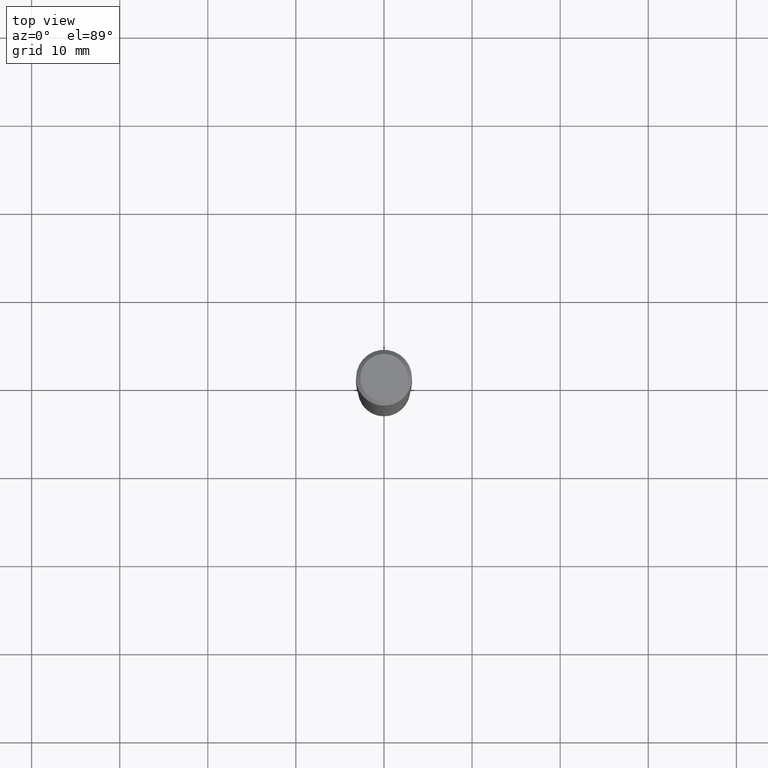
[diagram: clean part render]
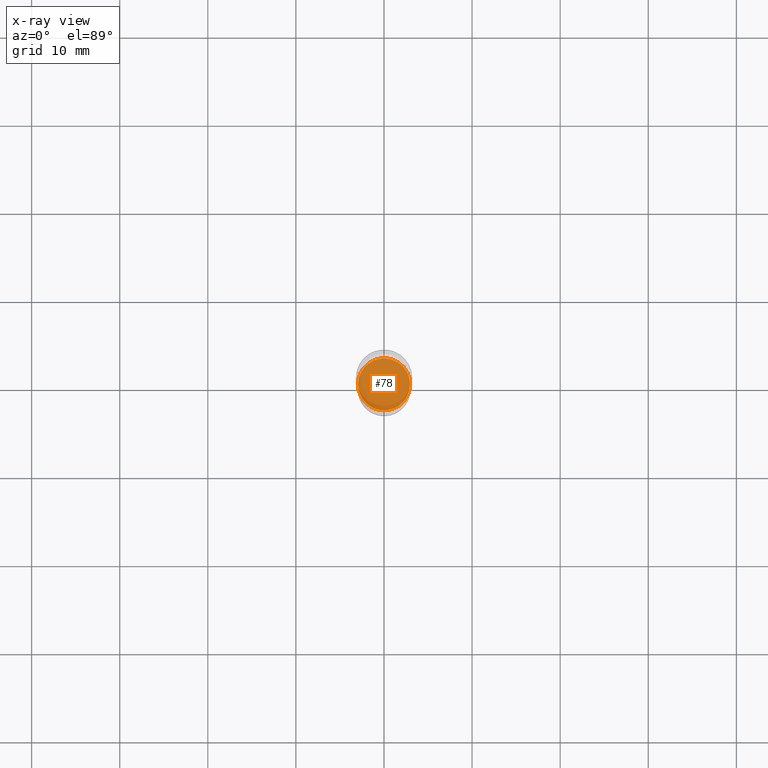
[diagram: x-ray — body ghosted, one internal face saturated and labeled with its STEP entity id]
A machine part, top view, then the same camera in x-ray: the body is ghosted and one INTERNAL B-rep face — a face not visible from any outside direction — is saturated and labeled: STEP entity #78.
In plain terms, the highlighted planar face has unit normal (-0, 0, 1).
Its self-contained STEP definition (entity closure, byte-faithful):
#1 = ORIENTED_EDGE ( 'NONE', *, *, #223, .F. ) ;
#52 = FACE_OUTER_BOUND ( 'NONE', #345, .T. ) ;
#78 = ADVANCED_FACE ( 'NONE', ( #52 ), #210, .F. ) ;
#79 = VERTEX_POINT ( 'NONE', #272 ) ;
#90 = DIRECTION ( 'NONE',  ( 1.000000000000000000, -6.982962677686265922E-15, 4.876176775795935793E-29 ) ) ;
#168 = CARTESIAN_POINT ( 'NONE',  ( 4.240442909925027244E-29, -6.054228641554014979E-15, -1.734000000000000208 ) ) ;
#196 = ORIENTED_EDGE ( 'NONE', *, *, #414, .F. ) ;
#209 = CARTESIAN_POINT ( 'NONE',  ( 4.240442909925027244E-29, -6.054228641554014979E-15, -1.734000000000000208 ) ) ;
#210 = PLANE ( 'NONE',  #480 ) ;
#211 = CARTESIAN_POINT ( 'NONE',  ( 0.1165000000000000063, -6.867743793504464830E-15, -1.734000000000000208 ) ) ;
#223 = EDGE_CURVE ( 'NONE', #79, #377, #488, .T. ) ;
#272 = CARTESIAN_POINT ( 'NONE',  ( -0.1165000000000000063, -5.223797127219386721E-15, -1.734000000000000208 ) ) ;
#287 = DIRECTION ( 'NONE',  ( 1.000000000000000000, -6.982962677686270655E-15, 0.000000000000000000 ) ) ;
#288 = DIRECTION ( 'NONE',  ( 1.000000000000000000, -6.982962677686270655E-15, 0.000000000000000000 ) ) ;
#289 = DIRECTION ( 'NONE',  ( -2.438088387897960049E-29, 3.491481338843145188E-15, 1.000000000000000000 ) ) ;
#312 = DIRECTION ( 'NONE',  ( -2.445468806185136597E-29, 3.491481338843145583E-15, 1.000000000000000000 ) ) ;
#345 = EDGE_LOOP ( 'NONE', ( #196, #1 ) ) ;
#346 = CIRCLE ( 'NONE', #390, 0.1165000000000000063 ) ;
#377 = VERTEX_POINT ( 'NONE', #211 ) ;
#388 = DIRECTION ( 'NONE',  ( -2.445468806185136597E-29, 3.491481338843145583E-15, 1.000000000000000000 ) ) ;
#390 = AXIS2_PLACEMENT_3D ( 'NONE', #392, #312, #287 ) ;
#392 = CARTESIAN_POINT ( 'NONE',  ( 4.240442909925027244E-29, -6.054228641554014979E-15, -1.734000000000000208 ) ) ;
#408 = AXIS2_PLACEMENT_3D ( 'NONE', #209, #388, #288 ) ;
#414 = EDGE_CURVE ( 'NONE', #377, #79, #346, .T. ) ;
#480 = AXIS2_PLACEMENT_3D ( 'NONE', #168, #289, #90 ) ;
#488 = CIRCLE ( 'NONE', #408, 0.1165000000000000063 ) ;